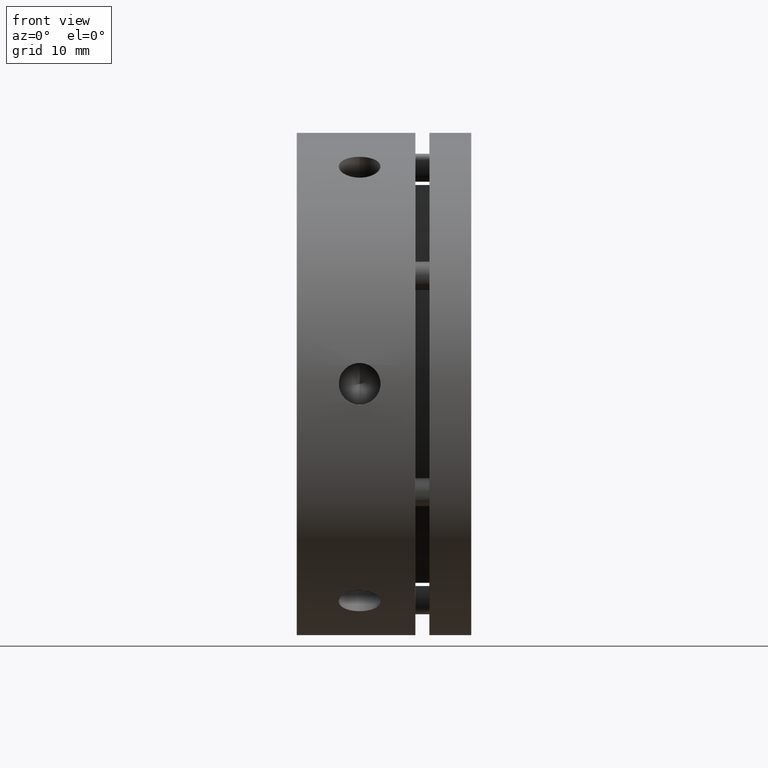
[diagram: clean part render]
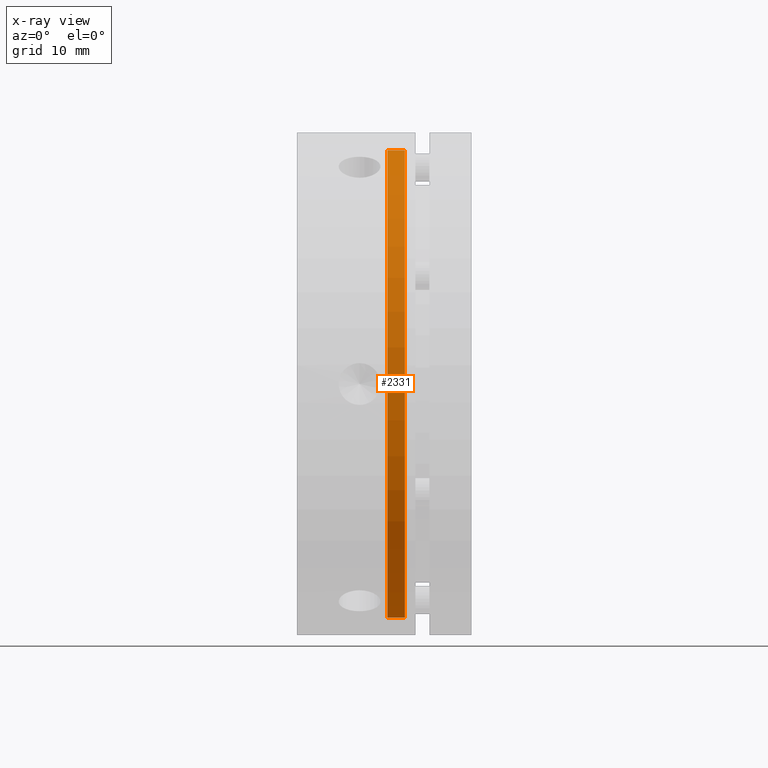
[diagram: x-ray — body ghosted, one internal face saturated and labeled with its STEP entity id]
A machine part, front view, then the same camera in x-ray: the body is ghosted and one INTERNAL B-rep face — a face not visible from any outside direction — is saturated and labeled: STEP entity #2331.
In plain terms, the highlighted cylindrical surface (partial cylindrical patch) has radius 33.5 mm, axis along (-1, 0, 0).
Its self-contained STEP definition (entity closure, byte-faithful):
#98 = AXIS2_PLACEMENT_3D ( 'NONE', #3228, #3226, #3224 ) ;
#205 = EDGE_LOOP ( 'NONE', ( #1331, #1330, #1329, #1328 ) ) ;
#266 = EDGE_CURVE ( 'NONE', #1061, #1060, #573, .T. ) ;
#573 = CIRCLE ( 'NONE', #877, 33.50000000000000700 ) ;
#877 = AXIS2_PLACEMENT_3D ( 'NONE', #1673, #1674, #1675 ) ;
#1056 = VERTEX_POINT ( 'NONE', #2005 ) ;
#1057 = VERTEX_POINT ( 'NONE', #2006 ) ;
#1060 = VERTEX_POINT ( 'NONE', #2009 ) ;
#1061 = VERTEX_POINT ( 'NONE', #2010 ) ;
#1328 = ORIENTED_EDGE ( 'NONE', *, *, #4698, .F. ) ;
#1329 = ORIENTED_EDGE ( 'NONE', *, *, #266, .T. ) ;
#1330 = ORIENTED_EDGE ( 'NONE', *, *, #4719, .T. ) ;
#1331 = ORIENTED_EDGE ( 'NONE', *, *, #4723, .T. ) ;
#1673 = CARTESIAN_POINT ( 'NONE',  ( 13.00000000000001100, 0.0000000000000000000, 0.0000000000000000000 ) ) ;
#1674 = DIRECTION ( 'NONE',  ( -1.000000000000000000, 0.0000000000000000000, 0.0000000000000000000 ) ) ;
#1675 = DIRECTION ( 'NONE',  ( 0.0000000000000000000, 0.0000000000000000000, 1.000000000000000000 ) ) ;
#2005 = CARTESIAN_POINT ( 'NONE',  ( 15.50000000000000400, 4.102566777143634600E-015, -33.50000000000000700 ) ) ;
#2006 = CARTESIAN_POINT ( 'NONE',  ( 15.50000000000000400, 0.0000000000000000000, 33.50000000000000700 ) ) ;
#2009 = CARTESIAN_POINT ( 'NONE',  ( 13.00000000000001100, 0.0000000000000000000, 33.50000000000000700 ) ) ;
#2010 = CARTESIAN_POINT ( 'NONE',  ( 13.00000000000001100, 4.102566777143634600E-015, -33.50000000000000700 ) ) ;
#2331 = ADVANCED_FACE ( 'NONE', ( #3673 ), #3682, .F. ) ;
#3224 = DIRECTION ( 'NONE',  ( 0.0000000000000000000, 0.0000000000000000000, 1.000000000000000000 ) ) ;
#3226 = DIRECTION ( 'NONE',  ( -1.000000000000000000, 0.0000000000000000000, 0.0000000000000000000 ) ) ;
#3228 = CARTESIAN_POINT ( 'NONE',  ( 14.25000000000000700, 0.0000000000000000000, 0.0000000000000000000 ) ) ;
#3673 = FACE_OUTER_BOUND ( 'NONE', #205, .T. ) ;
#3682 = CYLINDRICAL_SURFACE ( 'NONE', #98, 33.50000000000000700 ) ;
#3999 = AXIS2_PLACEMENT_3D ( 'NONE', #4488, #4489, #4490 ) ;
#4209 = LINE ( 'NONE', #4422, #4211 ) ;
#4211 = VECTOR ( 'NONE', #4420, 1000.000000000000000 ) ;
#4236 = LINE ( 'NONE', #4468, #4243 ) ;
#4243 = VECTOR ( 'NONE', #4480, 1000.000000000000000 ) ;
#4247 = CIRCLE ( 'NONE', #3999, 33.50000000000000700 ) ;
#4420 = DIRECTION ( 'NONE',  ( -1.000000000000000000, 0.0000000000000000000, 0.0000000000000000000 ) ) ;
#4422 = CARTESIAN_POINT ( 'NONE',  ( 14.25000000000000700, 0.0000000000000000000, 33.50000000000000700 ) ) ;
#4468 = CARTESIAN_POINT ( 'NONE',  ( 14.25000000000000700, 4.102566777143634600E-015, -33.50000000000000700 ) ) ;
#4480 = DIRECTION ( 'NONE',  ( -1.000000000000000000, 0.0000000000000000000, 0.0000000000000000000 ) ) ;
#4488 = CARTESIAN_POINT ( 'NONE',  ( 15.50000000000000400, 0.0000000000000000000, 0.0000000000000000000 ) ) ;
#4489 = DIRECTION ( 'NONE',  ( 1.000000000000000000, -0.0000000000000000000, -0.0000000000000000000 ) ) ;
#4490 = DIRECTION ( 'NONE',  ( 0.0000000000000000000, 0.0000000000000000000, 1.000000000000000000 ) ) ;
#4698 = EDGE_CURVE ( 'NONE', #1057, #1060, #4209, .T. ) ;
#4719 = EDGE_CURVE ( 'NONE', #1056, #1061, #4236, .T. ) ;
#4723 = EDGE_CURVE ( 'NONE', #1057, #1056, #4247, .T. ) ;